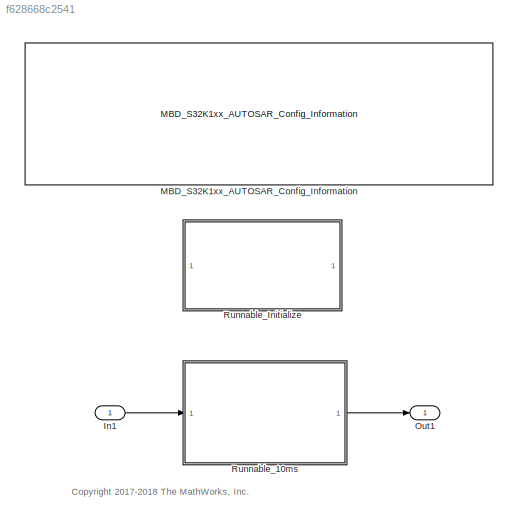
MODEL slx_f628668c2541
KIND model
CONFIG AbsTol = auto
CONFIG EnableMultiTasking = on
CONFIG FixedStep = 0.01
CONFIG InitFcn = mbd_s32k_as_consistency_checks(bdroot(gcs));
CONFIG MaxStep = auto
CONFIG MinStep = auto
CONFIG RelTol = 1e-3
CONFIG SampleTimeConstraint = Unconstrained
CONFIG Solver = FixedStepDiscrete
CONFIG SolverName = FixedStepDiscrete
CONFIG StartTime = 0.0
CONFIG StopTime = inf
WORKSPACE source: MATLAB code (in-file)
WORKSPACE cmdLim = Simulink.Parameter
WORKSPACE code: cmdLim.Value = 15;
WORKSPACE code: cmdLim.Description = 'Limit for controlling the maximum surface command angle.';
WORKSPACE code: cmdLim.Min = 0;
WORKSPACE code: cmdLim.Max = 90;
WORKSPACE code: cmdLim.DocUnits = 'deg';
WORKSPACE dispGain = Simulink.Parameter
WORKSPACE code: dispGain.Value = 0.75;
WORKSPACE code: dispGain.Description = 'Gain applied to the displacement error.';
WORKSPACE code: dispGain.Min = 0;
WORKSPACE code: dispGain.Max = [];
WORKSPACE code: dispGain.DocUnits = 'deg/sec/deg';
WORKSPACE dispLim = Simulink.Parameter
WORKSPACE code: dispLim.Value = 30;
WORKSPACE code: dispLim.Description = 'Limit for controlling the maximum commanded angle.';
WORKSPACE code: dispLim.Min = 0;
WORKSPACE code: dispLim.Max = 180;
WORKSPACE code: dispLim.DocUnits = 'deg';
WORKSPACE intGain = Simulink.Parameter
WORKSPACE code: intGain.Value = 0.5;
WORKSPACE code: intGain.Description = 'Gain applied to the integral error.';
WORKSPACE code: intGain.Min = 0;
WORKSPACE code: intGain.Max = [];
WORKSPACE code: intGain.DocUnits = 'deg/sec/deg/sec';
WORKSPACE intLim = Simulink.Parameter
WORKSPACE code: intLim.Value = 5;
WORKSPACE code: intLim.Description = 'Limit for controlling the maximum commanded angle.';
WORKSPACE code: intLim.Min = 0;
WORKSPACE code: intLim.Max = 90;
WORKSPACE code: intLim.DocUnits = 'deg';
WORKSPACE rateGain = Simulink.Parameter
WORKSPACE code: rateGain.Value = 2;
WORKSPACE code: rateGain.Description = 'Gain applied to the rate error.';
WORKSPACE code: rateGain.Min = 0;
WORKSPACE code: rateGain.Max = [];
WORKSPACE code: rateGain.DocUnits = 'deg/deg/sec';
WORKSPACE rateLim = Simulink.Parameter
WORKSPACE code: rateLim.Value = 6;
WORKSPACE code: rateLim.Description = 'Limit for controlling the maximum commanded angle.';
WORKSPACE code: rateLim.Min = 0;
WORKSPACE code: rateLim.Max = 180;
WORKSPACE code: rateLim.DocUnits = 'deg/sec';
WORKSPACE hdgGain = Simulink.Parameter
WORKSPACE code: hdgGain.Value = 0.015;
BLOCK [Inport] In1
  IconDisplay = Port number
  OutDataTypeStr = double
  PortDimensions = 1
  SamplingMode = Sample based
BLOCK [Reference] MBD_S32K1xx_AUTOSAR_Config_Information  REF=mbd_s32k_as_ec_toolbox/MBD_S32K1xx_AUTOSAR_Config_Information
  Ports = []
  SourceBlock = mbd_s32k_as_ec_toolbox/MBD_S32K1xx_AUTOSAR_Config_Information
  SourceType = MBDTBX_EC_S32K_AS
BLOCK [Outport] Out1
  IconDisplay = Port number
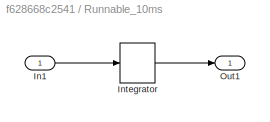
BLOCK [SubSystem] Runnable_10ms
  Ports = [1, 1]
  RequestExecContextInheritance = off
  SystemSampleTime = 1
BLOCK [Inport] Runnable_10ms/In1
  IconDisplay = Port number
BLOCK [DiscreteIntegrator] Runnable_10ms/Integrator
  ICPrevOutput = DiscIntNeverNeededParam
  ICPrevScaledInput = DiscIntNeverNeededParam
  InitialConditionSetting = Auto
  Ports = [1, 1]
  SampleTime = -1
  SaturateOnIntegerOverflow = on
BLOCK [Outport] Runnable_10ms/Out1
  IconDisplay = Port number
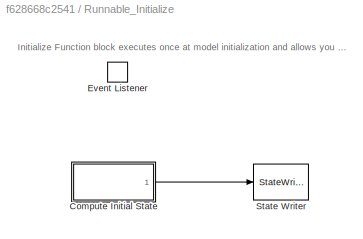
BLOCK [SubSystem] Runnable_Initialize
  Ports = []
  RequestExecContextInheritance = off
  TreatAsAtomicUnit = on
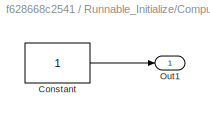
BLOCK [SubSystem] Runnable_Initialize/Compute Initial State
  Ports = [0, 1]
  RequestExecContextInheritance = off
BLOCK [Constant] Runnable_Initialize/Compute Initial State/Constant
  DisableCoverage = on
BLOCK [Outport] Runnable_Initialize/Compute Initial State/Out1
  IconDisplay = Port number
BLOCK [EventListener] Runnable_Initialize/Event Listener
  DisableCoverage = on
  EventName = reset
BLOCK [StateWriter] Runnable_Initialize/State Writer
  DisableCoverage = on
  StateOwnerBlock = ../../Runnable_10ms/Integrator
ANNOTATION (root): <copyright redacted>
ANNOTATION Runnable_Initialize: Initialize Function block executes once at model initialization and allows you to compute and override initial values of states in various blocks in the model.
LINE In1:1 -> Runnable_10ms:1
LINE Runnable_10ms/In1:1 -> Runnable_10ms/Integrator:1
LINE Runnable_10ms/Integrator:1 -> Runnable_10ms/Out1:1
LINE Runnable_10ms:1 -> Out1:1
LINE Runnable_Initialize/Compute Initial State/Constant:1 -> Runnable_Initialize/Compute Initial State/Out1:1
LINE Runnable_Initialize/Compute Initial State:1 -> Runnable_Initialize/State Writer:1
